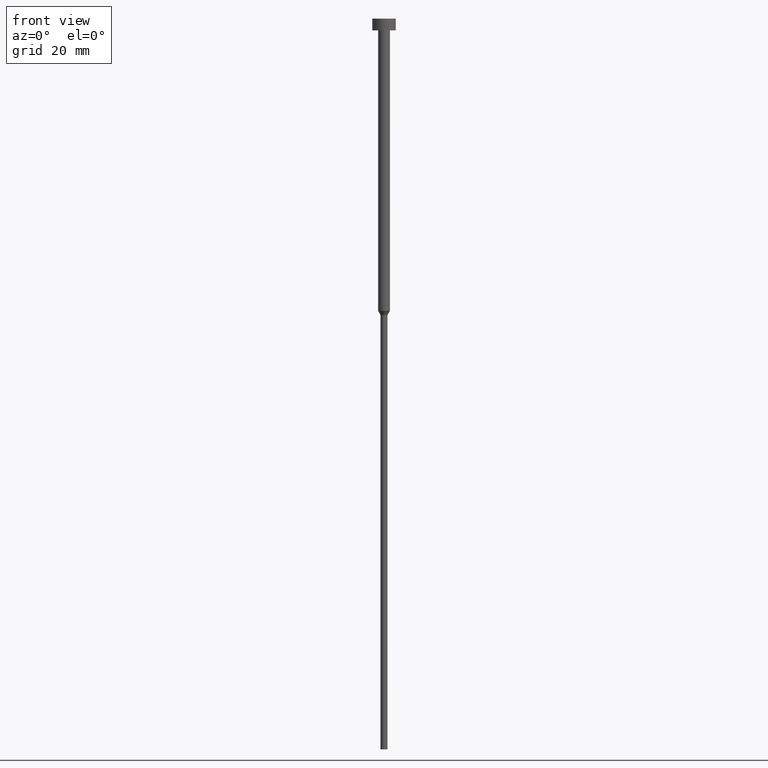
[diagram: clean part render]
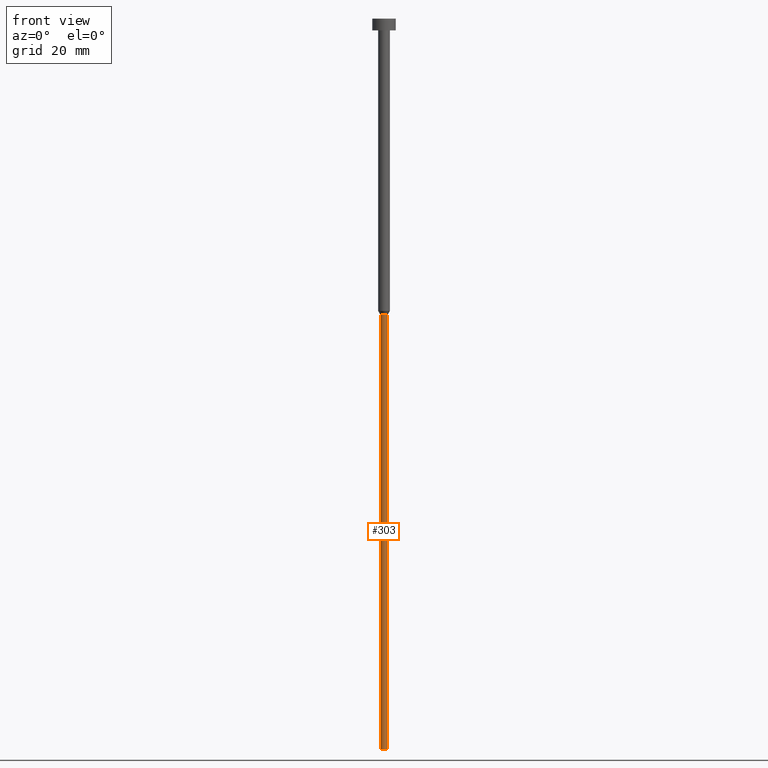
[diagram: same view with one face highlighted and labeled with its STEP entity id]
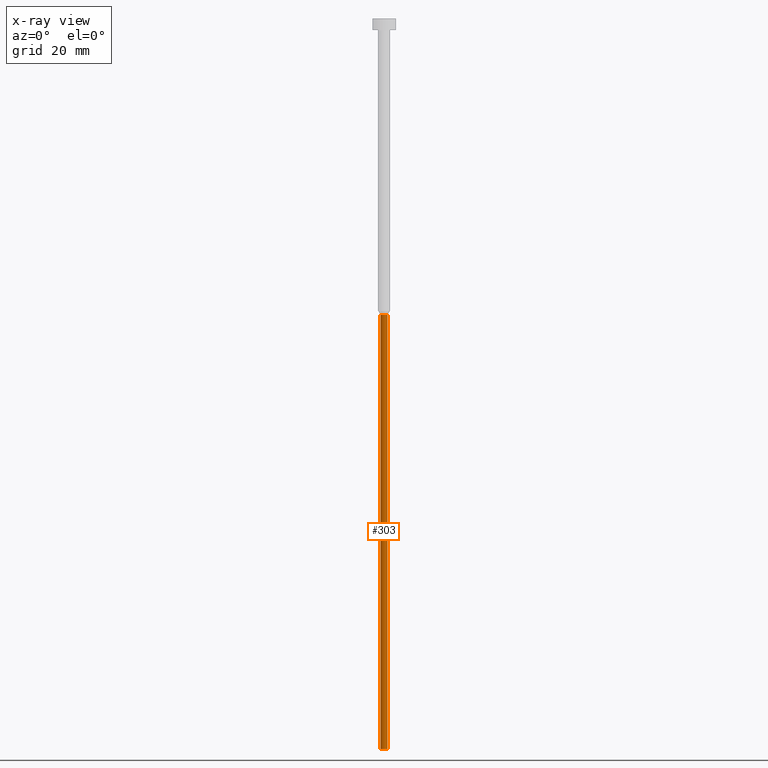
[diagram: x-ray of the same camera — body ghosted, the highlighted face saturated]
A machine part, front view. The second image highlights one B-rep face of the part: STEP entity #303.
The next image is the same camera in x-ray: the body ghosted, the highlighted face saturated — about 0% of this face is hidden behind the body in this view.
In plain terms, the highlighted cylindrical surface (edge-blend (fillet) strip) has radius 0.6 mm, axis along (-0, -0, 1).
Its self-contained STEP definition (entity closure, byte-faithful):
#2 = DIRECTION ( 'NONE',  ( -0.000000000000000000, -0.000000000000000000, 1.000000000000000000 ) ) ;
#27 = CARTESIAN_POINT ( 'NONE',  ( -0.5999999999999998668, 7.347880794884117764E-17, 0.000000000000000000 ) ) ;
#29 = VECTOR ( 'NONE', #95, 1000.000000000000000 ) ;
#31 = VERTEX_POINT ( 'NONE', #196 ) ;
#34 = VERTEX_POINT ( 'NONE', #56 ) ;
#39 = CIRCLE ( 'NONE', #192, 0.5999999999999999778 ) ;
#52 = EDGE_CURVE ( 'NONE', #276, #34, #241, .T. ) ;
#55 = VERTEX_POINT ( 'NONE', #266 ) ;
#56 = CARTESIAN_POINT ( 'NONE',  ( -0.5999999999999999778, 7.347880794884117764E-17, -50.69282032302755425 ) ) ;
#58 = CARTESIAN_POINT ( 'NONE',  ( -0.5999999999999998668, 7.347880794884117764E-17, -125.0000000000000000 ) ) ;
#68 = CARTESIAN_POINT ( 'NONE',  ( 0.000000000000000000, 0.000000000000000000, -125.0000000000000000 ) ) ;
#78 = EDGE_CURVE ( 'NONE', #34, #31, #39, .T. ) ;
#80 = AXIS2_PLACEMENT_3D ( 'NONE', #68, #202, #244 ) ;
#82 = ORIENTED_EDGE ( 'NONE', *, *, #78, .F. ) ;
#95 = DIRECTION ( 'NONE',  ( -0.000000000000000000, -0.000000000000000000, 1.000000000000000000 ) ) ;
#96 = CYLINDRICAL_SURFACE ( 'NONE', #225, 0.5999999999999998668 ) ;
#151 = CARTESIAN_POINT ( 'NONE',  ( 0.000000000000000000, 0.000000000000000000, -50.69282032302755425 ) ) ;
#191 = ORIENTED_EDGE ( 'NONE', *, *, #288, .T. ) ;
#192 = AXIS2_PLACEMENT_3D ( 'NONE', #151, #2, #327 ) ;
#196 = CARTESIAN_POINT ( 'NONE',  ( 0.5999999999999999778, 0.000000000000000000, -50.69282032302755425 ) ) ;
#198 = CIRCLE ( 'NONE', #80, 0.5999999999999998668 ) ;
#202 = DIRECTION ( 'NONE',  ( -0.000000000000000000, -0.000000000000000000, 1.000000000000000000 ) ) ;
#208 = CARTESIAN_POINT ( 'NONE',  ( 0.5999999999999998668, 0.000000000000000000, 0.000000000000000000 ) ) ;
#218 = EDGE_LOOP ( 'NONE', ( #312, #353, #191, #82 ) ) ;
#224 = DIRECTION ( 'NONE',  ( -0.000000000000000000, -0.000000000000000000, 1.000000000000000000 ) ) ;
#225 = AXIS2_PLACEMENT_3D ( 'NONE', #355, #224, #299 ) ;
#241 = LINE ( 'NONE', #27, #260 ) ;
#244 = DIRECTION ( 'NONE',  ( 1.000000000000000000, 0.000000000000000000, 0.000000000000000000 ) ) ;
#260 = VECTOR ( 'NONE', #293, 1000.000000000000000 ) ;
#265 = LINE ( 'NONE', #208, #29 ) ;
#266 = CARTESIAN_POINT ( 'NONE',  ( 0.5999999999999998668, 0.000000000000000000, -125.0000000000000000 ) ) ;
#269 = FACE_OUTER_BOUND ( 'NONE', #218, .T. ) ;
#276 = VERTEX_POINT ( 'NONE', #58 ) ;
#288 = EDGE_CURVE ( 'NONE', #55, #31, #265, .T. ) ;
#293 = DIRECTION ( 'NONE',  ( -0.000000000000000000, -0.000000000000000000, 1.000000000000000000 ) ) ;
#299 = DIRECTION ( 'NONE',  ( 1.000000000000000000, 0.000000000000000000, 0.000000000000000000 ) ) ;
#303 = ADVANCED_FACE ( 'NONE', ( #269 ), #96, .T. ) ;
#309 = EDGE_CURVE ( 'NONE', #276, #55, #198, .T. ) ;
#312 = ORIENTED_EDGE ( 'NONE', *, *, #52, .F. ) ;
#327 = DIRECTION ( 'NONE',  ( 1.000000000000000000, 0.000000000000000000, 0.000000000000000000 ) ) ;
#353 = ORIENTED_EDGE ( 'NONE', *, *, #309, .T. ) ;
#355 = CARTESIAN_POINT ( 'NONE',  ( 0.000000000000000000, 0.000000000000000000, 0.000000000000000000 ) ) ;